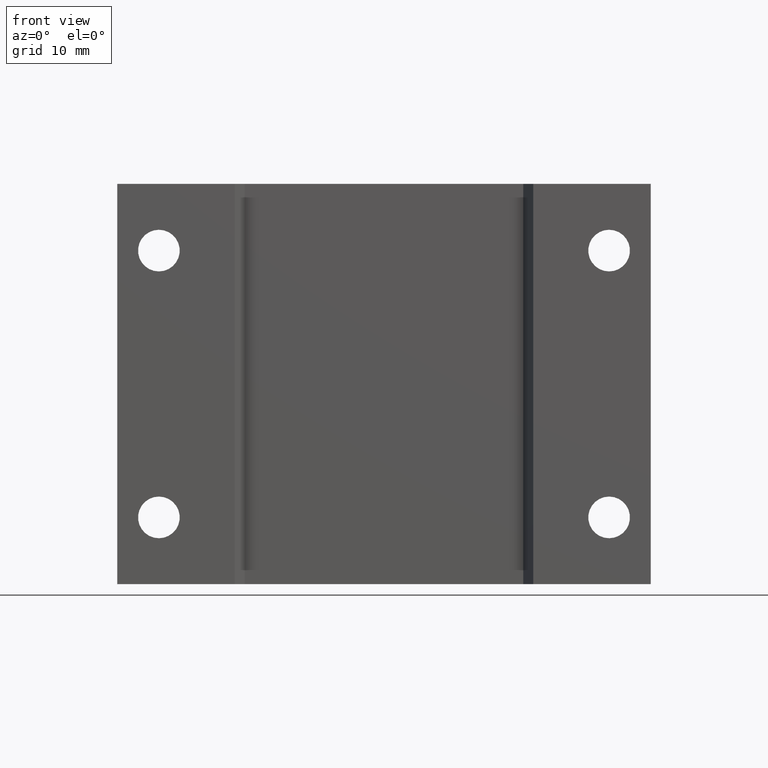
[diagram: clean part render]
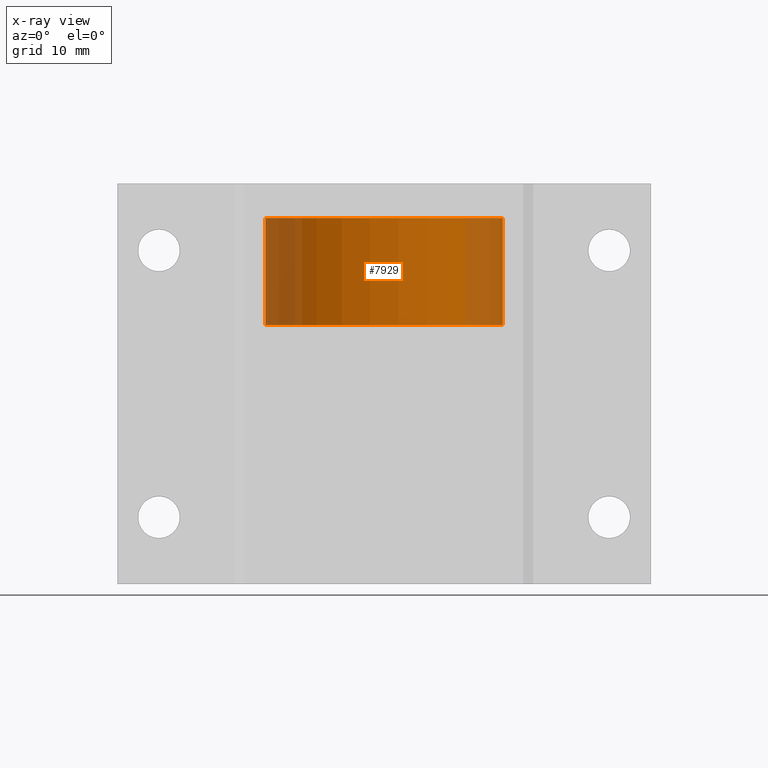
[diagram: x-ray — body ghosted, one internal face saturated and labeled with its STEP entity id]
A machine part, front view, then the same camera in x-ray: the body is ghosted and one INTERNAL B-rep face — a face not visible from any outside direction — is saturated and labeled: STEP entity #7929.
In plain terms, the highlighted cylindrical surface (partial cylindrical patch) has radius 11.303 mm, axis along (0, 0, 1).
Its self-contained STEP definition (entity closure, byte-faithful):
#82 = CARTESIAN_POINT ( 'NONE',  ( 0.4449999999999995071, 0.000000000000000000, 0.2212487288099023730 ) ) ;
#158 = DIRECTION ( 'NONE',  ( 1.000000000000000000, 0.000000000000000000, 0.000000000000000000 ) ) ;
#728 = DIRECTION ( 'NONE',  ( -0.000000000000000000, -0.000000000000000000, 1.000000000000000000 ) ) ;
#754 = AXIS2_PLACEMENT_3D ( 'NONE', #8658, #4440, #9353 ) ;
#930 = LINE ( 'NONE', #7452, #8235 ) ;
#1774 = CARTESIAN_POINT ( 'NONE',  ( 0.000000000000000000, 0.000000000000000000, -0.7500019685039369666 ) ) ;
#1798 = VERTEX_POINT ( 'NONE', #5108 ) ;
#1810 = CARTESIAN_POINT ( 'NONE',  ( -0.4449999999999995071, 5.449678256205717717E-17, 0.2212487288099023730 ) ) ;
#1835 = DIRECTION ( 'NONE',  ( -0.000000000000000000, -0.000000000000000000, 1.000000000000000000 ) ) ;
#1971 = EDGE_LOOP ( 'NONE', ( #2771, #10483, #6632, #9679 ) ) ;
#2771 = ORIENTED_EDGE ( 'NONE', *, *, #9727, .F. ) ;
#3292 = EDGE_CURVE ( 'NONE', #1798, #10310, #9002, .T. ) ;
#3507 = VERTEX_POINT ( 'NONE', #82 ) ;
#4440 = DIRECTION ( 'NONE',  ( -0.000000000000000000, -0.000000000000000000, 1.000000000000000000 ) ) ;
#5108 = CARTESIAN_POINT ( 'NONE',  ( -0.4450000000000000067, 5.449678256205722031E-17, 0.6217479246179028474 ) ) ;
#5445 = CIRCLE ( 'NONE', #10288, 0.4449999999999997846 ) ;
#5852 = VECTOR ( 'NONE', #728, 39.37007874015748143 ) ;
#5921 = DIRECTION ( 'NONE',  ( -0.000000000000000000, -0.000000000000000000, 1.000000000000000000 ) ) ;
#6355 = EDGE_CURVE ( 'NONE', #9217, #1798, #930, .T. ) ;
#6540 = LINE ( 'NONE', #9718, #5852 ) ;
#6632 = ORIENTED_EDGE ( 'NONE', *, *, #3292, .T. ) ;
#6753 = DIRECTION ( 'NONE',  ( -0.000000000000000000, -0.000000000000000000, 1.000000000000000000 ) ) ;
#7452 = CARTESIAN_POINT ( 'NONE',  ( -0.4450000000000000067, 5.449678256205722031E-17, -0.7500019685039369666 ) ) ;
#7929 = ADVANCED_FACE ( 'NONE', ( #9597 ), #8778, .F. ) ;
#8235 = VECTOR ( 'NONE', #5921, 39.37007874015748143 ) ;
#8416 = EDGE_CURVE ( 'NONE', #3507, #10310, #6540, .T. ) ;
#8658 = CARTESIAN_POINT ( 'NONE',  ( 0.000000000000000000, 0.000000000000000000, 0.6217479246179028474 ) ) ;
#8778 = CYLINDRICAL_SURFACE ( 'NONE', #9118, 0.4450000000000000067 ) ;
#9002 = CIRCLE ( 'NONE', #754, 0.4450000000000000067 ) ;
#9011 = CARTESIAN_POINT ( 'NONE',  ( 0.000000000000000000, 0.000000000000000000, 0.2212487288099023730 ) ) ;
#9060 = DIRECTION ( 'NONE',  ( 1.000000000000000000, 0.000000000000000000, 0.000000000000000000 ) ) ;
#9118 = AXIS2_PLACEMENT_3D ( 'NONE', #1774, #6753, #158 ) ;
#9217 = VERTEX_POINT ( 'NONE', #1810 ) ;
#9353 = DIRECTION ( 'NONE',  ( 1.000000000000000000, 0.000000000000000000, 0.000000000000000000 ) ) ;
#9597 = FACE_OUTER_BOUND ( 'NONE', #1971, .T. ) ;
#9679 = ORIENTED_EDGE ( 'NONE', *, *, #8416, .F. ) ;
#9718 = CARTESIAN_POINT ( 'NONE',  ( 0.4450000000000000067, 0.000000000000000000, -0.7500019685039369666 ) ) ;
#9727 = EDGE_CURVE ( 'NONE', #9217, #3507, #5445, .T. ) ;
#9945 = CARTESIAN_POINT ( 'NONE',  ( 0.4450000000000000067, 0.000000000000000000, 0.6217479246179028474 ) ) ;
#10288 = AXIS2_PLACEMENT_3D ( 'NONE', #9011, #1835, #9060 ) ;
#10310 = VERTEX_POINT ( 'NONE', #9945 ) ;
#10483 = ORIENTED_EDGE ( 'NONE', *, *, #6355, .T. ) ;